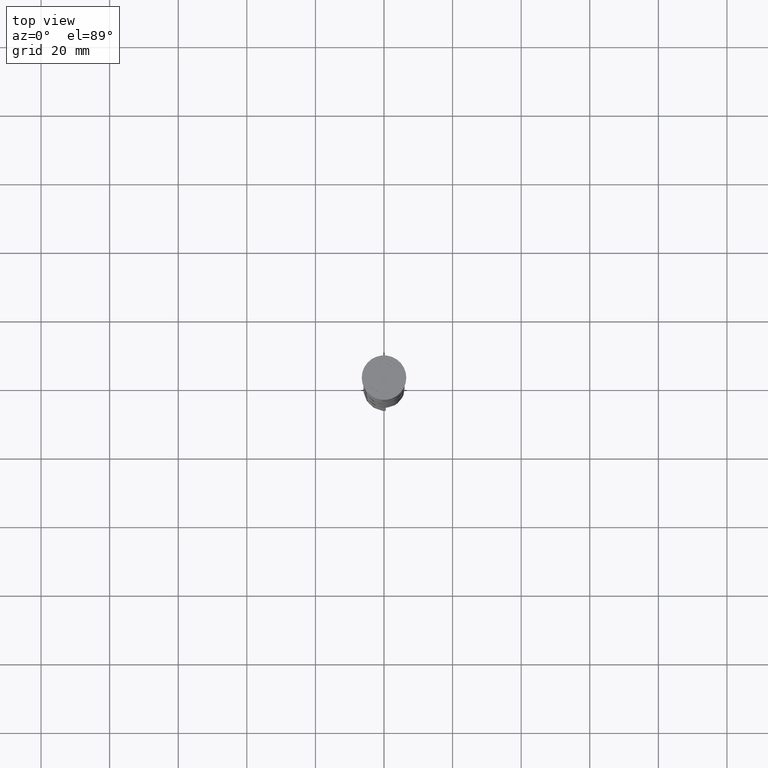
[diagram: clean part render]
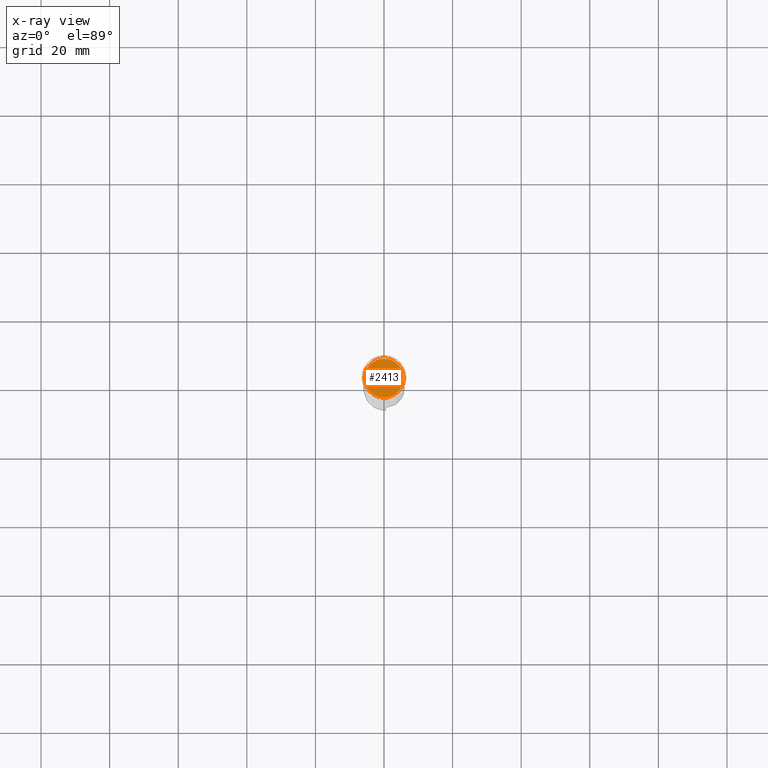
[diagram: x-ray — body ghosted, one internal face saturated and labeled with its STEP entity id]
A machine part, top view, then the same camera in x-ray: the body is ghosted and one INTERNAL B-rep face — a face not visible from any outside direction — is saturated and labeled: STEP entity #2413.
In plain terms, the highlighted planar face has unit normal (0, 0, -1).
Its self-contained STEP definition (entity closure, byte-faithful):
#263 = DIRECTION ( 'NONE',  ( -1.000000000000000000, 0.000000000000000000, 0.000000000000000000 ) ) ;
#334 = FACE_OUTER_BOUND ( 'NONE', #2198, .T. ) ;
#644 = DIRECTION ( 'NONE',  ( 0.000000000000000000, 0.000000000000000000, -1.000000000000000000 ) ) ;
#725 = VERTEX_POINT ( 'NONE', #1965 ) ;
#884 = EDGE_CURVE ( 'NONE', #725, #3139, #2401, .T. ) ;
#910 = CARTESIAN_POINT ( 'NONE',  ( 0.000000000000000000, 0.000000000000000000, -10.50000000000000178 ) ) ;
#987 = PLANE ( 'NONE',  #1891 ) ;
#1609 = CARTESIAN_POINT ( 'NONE',  ( 0.000000000000000000, 0.000000000000000000, -10.50000000000000178 ) ) ;
#1746 = DIRECTION ( 'NONE',  ( -0.000000000000000000, -0.000000000000000000, 1.000000000000000000 ) ) ;
#1838 = ORIENTED_EDGE ( 'NONE', *, *, #2250, .T. ) ;
#1891 = AXIS2_PLACEMENT_3D ( 'NONE', #3068, #644, #2748 ) ;
#1965 = CARTESIAN_POINT ( 'NONE',  ( -5.700000000000002842, 0.000000000000000000, -10.50000000000000178 ) ) ;
#2198 = EDGE_LOOP ( 'NONE', ( #2338, #1838 ) ) ;
#2250 = EDGE_CURVE ( 'NONE', #3139, #725, #2394, .T. ) ;
#2338 = ORIENTED_EDGE ( 'NONE', *, *, #884, .T. ) ;
#2394 = CIRCLE ( 'NONE', #2528, 5.700000000000002842 ) ;
#2401 = CIRCLE ( 'NONE', #2969, 5.700000000000002842 ) ;
#2413 = ADVANCED_FACE ( 'NONE', ( #334 ), #987, .F. ) ;
#2528 = AXIS2_PLACEMENT_3D ( 'NONE', #910, #1746, #263 ) ;
#2748 = DIRECTION ( 'NONE',  ( -1.000000000000000000, 0.000000000000000000, -0.000000000000000000 ) ) ;
#2969 = AXIS2_PLACEMENT_3D ( 'NONE', #1609, #3706, #3415 ) ;
#3068 = CARTESIAN_POINT ( 'NONE',  ( 0.000000000000000000, 0.000000000000000000, -10.50000000000000178 ) ) ;
#3139 = VERTEX_POINT ( 'NONE', #3449 ) ;
#3415 = DIRECTION ( 'NONE',  ( -1.000000000000000000, 0.000000000000000000, 0.000000000000000000 ) ) ;
#3449 = CARTESIAN_POINT ( 'NONE',  ( 5.700000000000002842, 7.164183775012019380E-16, -10.50000000000000178 ) ) ;
#3706 = DIRECTION ( 'NONE',  ( -0.000000000000000000, -0.000000000000000000, 1.000000000000000000 ) ) ;